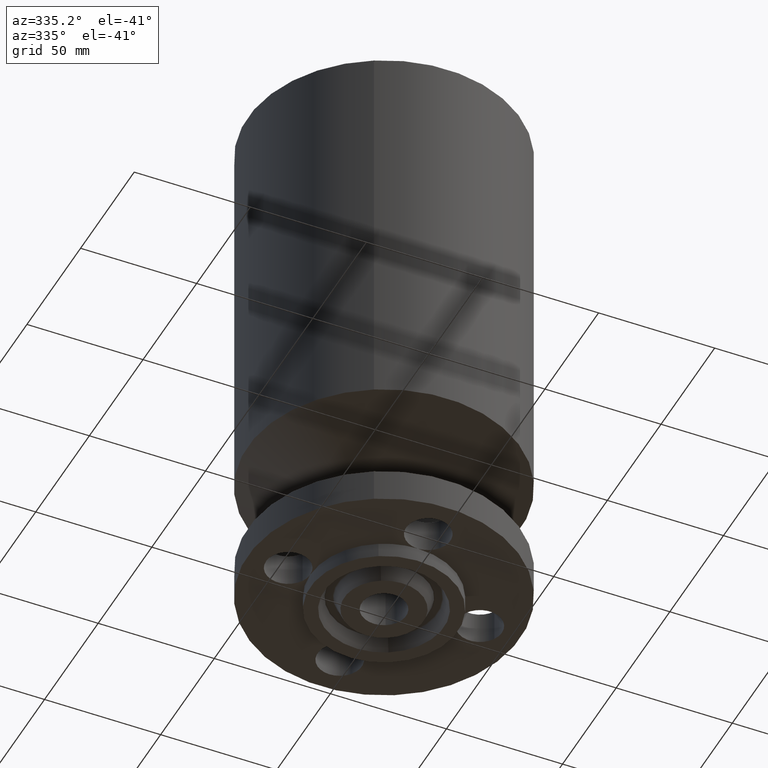
[diagram: clean part render]
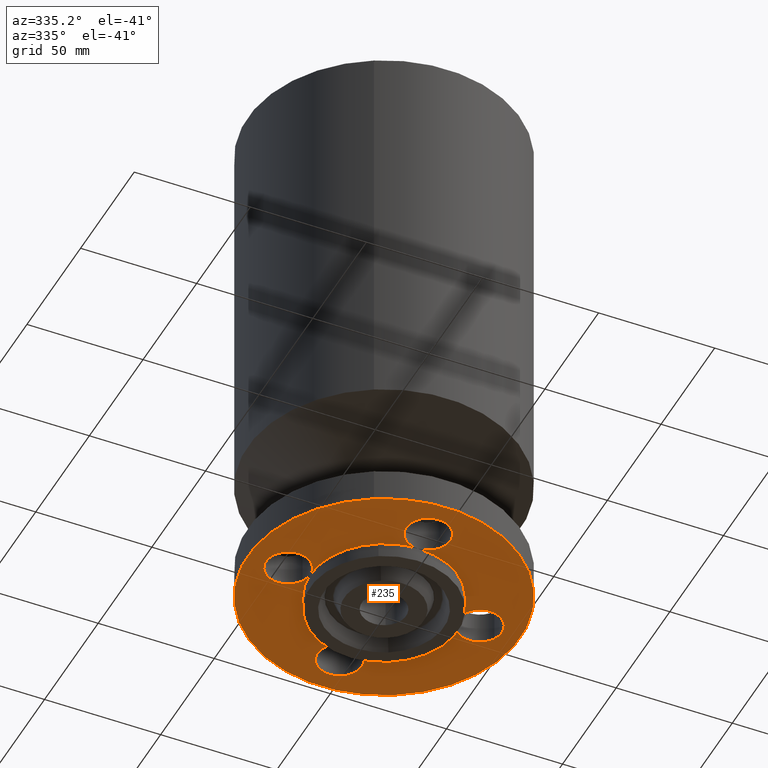
[diagram: same view with one face highlighted and labeled with its STEP entity id]
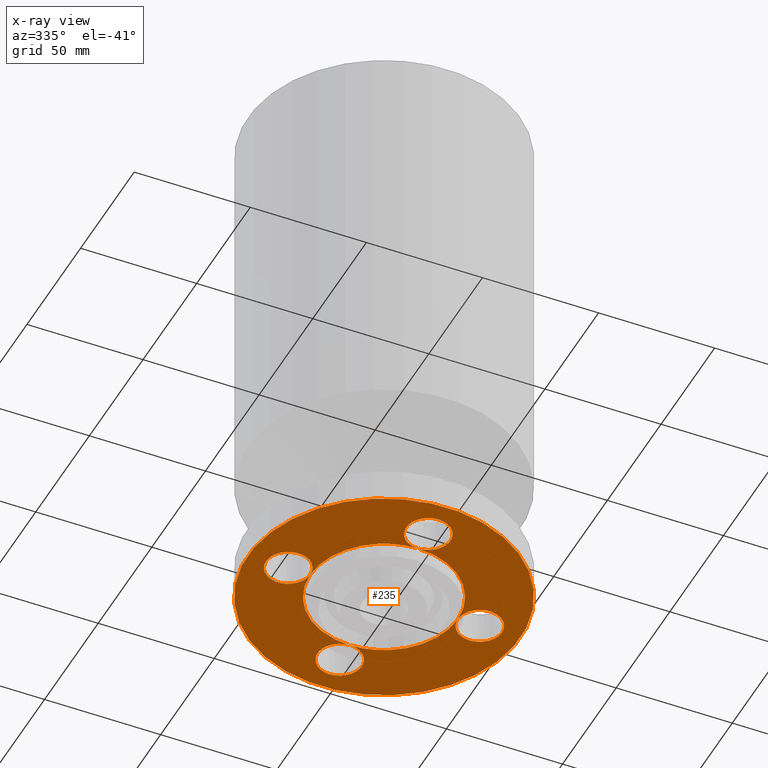
[diagram: x-ray of the same camera — body ghosted, the highlighted face saturated]
A machine part, auxiliary view. The second image highlights one B-rep face of the part: STEP entity #235.
The next image is the same camera in x-ray: the body ghosted, the highlighted face saturated — about 0% of this face is hidden behind the body in this view.
In plain terms, the highlighted planar face has unit normal (0, 0, -1).
Its self-contained STEP definition (entity closure, byte-faithful):
#51=AXIS2_PLACEMENT_3D('Circle Axis2P3D',#49,#50,$) ;
#78=AXIS2_PLACEMENT_3D('Plane Axis2P3D',#75,#76,#77) ;
#82=AXIS2_PLACEMENT_3D('Circle Axis2P3D',#80,#81,$) ;
#91=AXIS2_PLACEMENT_3D('Circle Axis2P3D',#89,#90,$) ;
#100=AXIS2_PLACEMENT_3D('Circle Axis2P3D',#98,#99,$) ;
#109=AXIS2_PLACEMENT_3D('Circle Axis2P3D',#107,#108,$) ;
#116=AXIS2_PLACEMENT_3D('Circle Axis2P3D',#114,#115,$) ;
#126=AXIS2_PLACEMENT_3D('Circle Axis2P3D',#124,#125,$) ;
#133=AXIS2_PLACEMENT_3D('Circle Axis2P3D',#131,#132,$) ;
#140=AXIS2_PLACEMENT_3D('Circle Axis2P3D',#138,#139,$) ;
#147=AXIS2_PLACEMENT_3D('Circle Axis2P3D',#145,#146,$) ;
#154=AXIS2_PLACEMENT_3D('Circle Axis2P3D',#152,#153,$) ;
#161=AXIS2_PLACEMENT_3D('Circle Axis2P3D',#159,#160,$) ;
#174=AXIS2_PLACEMENT_3D('Circle Axis2P3D',#172,#173,$) ;
#181=AXIS2_PLACEMENT_3D('Circle Axis2P3D',#179,#180,$) ;
#188=AXIS2_PLACEMENT_3D('Circle Axis2P3D',#186,#187,$) ;
#198=AXIS2_PLACEMENT_3D('Circle Axis2P3D',#196,#197,$) ;
#203=AXIS2_PLACEMENT_3D('Circle Axis2P3D',#201,#202,$) ;
#213=AXIS2_PLACEMENT_3D('Circle Axis2P3D',#211,#212,$) ;
#220=AXIS2_PLACEMENT_3D('Circle Axis2P3D',#218,#219,$) ;
#227=AXIS2_PLACEMENT_3D('Circle Axis2P3D',#225,#226,$) ;
#46=CARTESIAN_POINT('Vertex',(1.95409346072,0.179784576977,2.2401153548E-016)) ;
#49=CARTESIAN_POINT('Axis2P3D Location',(1.62500000001,0.,0.)) ;
#53=CARTESIAN_POINT('Vertex',(1.2959065393,-0.179784576977,2.2401153548E-016)) ;
#75=CARTESIAN_POINT('Axis2P3D Location',(0.,0.798637156453,0.)) ;
#80=CARTESIAN_POINT('Axis2P3D Location',(0.,0.,0.)) ;
#84=CARTESIAN_POINT('Vertex',(-1.10747299418,-2.02721571797,-5.59482469102E-016)) ;
#86=CARTESIAN_POINT('Vertex',(1.10747299418,2.02721571797,-5.59482469102E-016)) ;
#89=CARTESIAN_POINT('Axis2P3D Location',(0.,0.,0.)) ;
#98=CARTESIAN_POINT('Axis2P3D Location',(-1.62500000001,0.,0.)) ;
#102=CARTESIAN_POINT('Vertex',(-1.2959065393,0.179784576977,0.)) ;
#104=CARTESIAN_POINT('Vertex',(-1.25,1.39870617276E-016,0.)) ;
#107=CARTESIAN_POINT('Axis2P3D Location',(-1.62500000001,-1.39870617276E-016,0.)) ;
#111=CARTESIAN_POINT('Vertex',(-1.95409346072,-0.179784576977,2.2401153548E-016)) ;
#114=CARTESIAN_POINT('Axis2P3D Location',(-1.62500000001,0.,0.)) ;
#124=CARTESIAN_POINT('Axis2P3D Location',(0.,0.,0.)) ;
#128=CARTESIAN_POINT('Vertex',(-0.599281923258,-1.09697820237,0.)) ;
#131=CARTESIAN_POINT('Axis2P3D Location',(0.,0.,0.)) ;
#135=CARTESIAN_POINT('Vertex',(-1.3882169109E-016,-1.25000000001,0.)) ;
#138=CARTESIAN_POINT('Axis2P3D Location',(0.,0.,0.)) ;
#142=CARTESIAN_POINT('Vertex',(1.25000000001,-1.91428434947E-015,0.)) ;
#145=CARTESIAN_POINT('Axis2P3D Location',(0.,0.,0.)) ;
#149=CARTESIAN_POINT('Vertex',(0.599281923258,1.09697820237,0.)) ;
#152=CARTESIAN_POINT('Axis2P3D Location',(0.,0.,0.)) ;
#156=CARTESIAN_POINT('Vertex',(-2.43447688858E-016,1.25000000001,0.)) ;
#159=CARTESIAN_POINT('Axis2P3D Location',(0.,0.,0.)) ;
#172=CARTESIAN_POINT('Axis2P3D Location',(-6.99353086378E-017,-1.62500000001,0.)) ;
#176=CARTESIAN_POINT('Vertex',(-0.179784576977,-1.2959065393,0.)) ;
#179=CARTESIAN_POINT('Axis2P3D Location',(-2.44773580232E-016,-1.62500000001,0.)) ;
#183=CARTESIAN_POINT('Vertex',(0.179784576977,-1.95409346072,2.2401153548E-016)) ;
#186=CARTESIAN_POINT('Axis2P3D Location',(-6.99353086378E-017,-1.62500000001,0.)) ;
#196=CARTESIAN_POINT('Axis2P3D Location',(1.62500000001,0.,0.)) ;
#201=CARTESIAN_POINT('Axis2P3D Location',(1.62500000001,0.,0.)) ;
#211=CARTESIAN_POINT('Axis2P3D Location',(-3.49676543189E-016,1.62500000001,0.)) ;
#215=CARTESIAN_POINT('Vertex',(0.179784576977,1.2959065393,0.)) ;
#218=CARTESIAN_POINT('Axis2P3D Location',(-2.09805925913E-016,1.62500000001,0.)) ;
#222=CARTESIAN_POINT('Vertex',(-0.179784576977,1.95409346072,2.2401153548E-016)) ;
#225=CARTESIAN_POINT('Axis2P3D Location',(-3.49676543189E-016,1.62500000001,0.)) ;
#50=DIRECTION('Axis2P3D Direction',(0.,-0.,0.0393700787402)) ;
#76=DIRECTION('Axis2P3D Direction',(0.,0.,-0.0393700787402)) ;
#77=DIRECTION('Axis2P3D XDirection',(0.0393700787402,0.,0.)) ;
#81=DIRECTION('Axis2P3D Direction',(0.,0.,-0.0393700787402)) ;
#90=DIRECTION('Axis2P3D Direction',(0.,0.,-0.0393700787402)) ;
#99=DIRECTION('Axis2P3D Direction',(0.,0.,-0.0393700787402)) ;
#108=DIRECTION('Axis2P3D Direction',(0.,0.,-0.0393700787402)) ;
#115=DIRECTION('Axis2P3D Direction',(0.,0.,-0.0393700787402)) ;
#125=DIRECTION('Axis2P3D Direction',(0.,0.,-0.0393700787402)) ;
#132=DIRECTION('Axis2P3D Direction',(0.,0.,-0.0393700787402)) ;
#139=DIRECTION('Axis2P3D Direction',(0.,0.,-0.0393700787402)) ;
#146=DIRECTION('Axis2P3D Direction',(0.,0.,-0.0393700787402)) ;
#153=DIRECTION('Axis2P3D Direction',(0.,0.,-0.0393700787402)) ;
#160=DIRECTION('Axis2P3D Direction',(0.,0.,-0.0393700787402)) ;
#173=DIRECTION('Axis2P3D Direction',(0.,0.,-0.0393700787402)) ;
#180=DIRECTION('Axis2P3D Direction',(0.,0.,-0.0393700787402)) ;
#187=DIRECTION('Axis2P3D Direction',(0.,0.,-0.0393700787402)) ;
#197=DIRECTION('Axis2P3D Direction',(0.,0.,-0.0393700787402)) ;
#202=DIRECTION('Axis2P3D Direction',(0.,0.,-0.0393700787402)) ;
#212=DIRECTION('Axis2P3D Direction',(0.,0.,-0.0393700787402)) ;
#219=DIRECTION('Axis2P3D Direction',(0.,0.,-0.0393700787402)) ;
#226=DIRECTION('Axis2P3D Direction',(0.,0.,-0.0393700787402)) ;
#95=ORIENTED_EDGE('',*,*,#88,.T.) ;
#96=ORIENTED_EDGE('',*,*,#93,.T.) ;
#120=ORIENTED_EDGE('',*,*,#106,.F.) ;
#121=ORIENTED_EDGE('',*,*,#113,.F.) ;
#122=ORIENTED_EDGE('',*,*,#118,.F.) ;
#165=ORIENTED_EDGE('',*,*,#130,.F.) ;
#166=ORIENTED_EDGE('',*,*,#137,.F.) ;
#167=ORIENTED_EDGE('',*,*,#144,.F.) ;
#168=ORIENTED_EDGE('',*,*,#151,.F.) ;
#169=ORIENTED_EDGE('',*,*,#158,.F.) ;
#170=ORIENTED_EDGE('',*,*,#163,.F.) ;
#192=ORIENTED_EDGE('',*,*,#178,.F.) ;
#193=ORIENTED_EDGE('',*,*,#185,.F.) ;
#194=ORIENTED_EDGE('',*,*,#190,.F.) ;
#207=ORIENTED_EDGE('',*,*,#200,.F.) ;
#208=ORIENTED_EDGE('',*,*,#55,.F.) ;
#209=ORIENTED_EDGE('',*,*,#205,.F.) ;
#231=ORIENTED_EDGE('',*,*,#217,.F.) ;
#232=ORIENTED_EDGE('',*,*,#224,.F.) ;
#233=ORIENTED_EDGE('',*,*,#229,.F.) ;
#123=FACE_BOUND('',#119,.T.) ;
#171=FACE_BOUND('',#164,.T.) ;
#195=FACE_BOUND('',#191,.T.) ;
#210=FACE_BOUND('',#206,.T.) ;
#234=FACE_BOUND('',#230,.T.) ;
#235=ADVANCED_FACE('PartBody',(#97,#123,#171,#195,#210,#234),#79,.T.) ;
#52=CIRCLE('generated circle',#51,0.375000000001) ;
#83=CIRCLE('generated circle',#82,2.31000000001) ;
#92=CIRCLE('generated circle',#91,2.31000000001) ;
#101=CIRCLE('generated circle',#100,0.375000000002) ;
#110=CIRCLE('generated circle',#109,0.375000000002) ;
#117=CIRCLE('generated circle',#116,0.375000000002) ;
#127=CIRCLE('generated circle',#126,1.25000000001) ;
#134=CIRCLE('generated circle',#133,1.25000000001) ;
#141=CIRCLE('generated circle',#140,1.25000000001) ;
#148=CIRCLE('generated circle',#147,1.25000000001) ;
#155=CIRCLE('generated circle',#154,1.25000000001) ;
#162=CIRCLE('generated circle',#161,1.25000000001) ;
#175=CIRCLE('generated circle',#174,0.375000000001) ;
#182=CIRCLE('generated circle',#181,0.375000000001) ;
#189=CIRCLE('generated circle',#188,0.375000000001) ;
#199=CIRCLE('generated circle',#198,0.375000000001) ;
#204=CIRCLE('generated circle',#203,0.375000000001) ;
#214=CIRCLE('generated circle',#213,0.375000000001) ;
#221=CIRCLE('generated circle',#220,0.375000000001) ;
#228=CIRCLE('generated circle',#227,0.375000000001) ;
#55=EDGE_CURVE('',#47,#54,#52,.F.) ;
#88=EDGE_CURVE('',#85,#87,#83,.T.) ;
#93=EDGE_CURVE('',#87,#85,#92,.T.) ;
#106=EDGE_CURVE('',#103,#105,#101,.T.) ;
#113=EDGE_CURVE('',#112,#103,#110,.T.) ;
#118=EDGE_CURVE('',#105,#112,#117,.T.) ;
#130=EDGE_CURVE('',#129,#105,#127,.T.) ;
#137=EDGE_CURVE('',#136,#129,#134,.T.) ;
#144=EDGE_CURVE('',#143,#136,#141,.T.) ;
#151=EDGE_CURVE('',#150,#143,#148,.T.) ;
#158=EDGE_CURVE('',#157,#150,#155,.T.) ;
#163=EDGE_CURVE('',#105,#157,#162,.T.) ;
#178=EDGE_CURVE('',#177,#136,#175,.T.) ;
#185=EDGE_CURVE('',#184,#177,#182,.T.) ;
#190=EDGE_CURVE('',#136,#184,#189,.T.) ;
#200=EDGE_CURVE('',#54,#143,#199,.T.) ;
#205=EDGE_CURVE('',#143,#47,#204,.T.) ;
#217=EDGE_CURVE('',#216,#157,#214,.T.) ;
#224=EDGE_CURVE('',#223,#216,#221,.T.) ;
#229=EDGE_CURVE('',#157,#223,#228,.T.) ;
#94=EDGE_LOOP('',(#95,#96)) ;
#119=EDGE_LOOP('',(#120,#121,#122)) ;
#164=EDGE_LOOP('',(#165,#166,#167,#168,#169,#170)) ;
#191=EDGE_LOOP('',(#192,#193,#194)) ;
#206=EDGE_LOOP('',(#207,#208,#209)) ;
#230=EDGE_LOOP('',(#231,#232,#233)) ;
#97=FACE_OUTER_BOUND('',#94,.T.) ;
#79=PLANE('',#78) ;
#47=VERTEX_POINT('',#46) ;
#54=VERTEX_POINT('',#53) ;
#85=VERTEX_POINT('',#84) ;
#87=VERTEX_POINT('',#86) ;
#103=VERTEX_POINT('',#102) ;
#105=VERTEX_POINT('',#104) ;
#112=VERTEX_POINT('',#111) ;
#129=VERTEX_POINT('',#128) ;
#136=VERTEX_POINT('',#135) ;
#143=VERTEX_POINT('',#142) ;
#150=VERTEX_POINT('',#149) ;
#157=VERTEX_POINT('',#156) ;
#177=VERTEX_POINT('',#176) ;
#184=VERTEX_POINT('',#183) ;
#216=VERTEX_POINT('',#215) ;
#223=VERTEX_POINT('',#222) ;